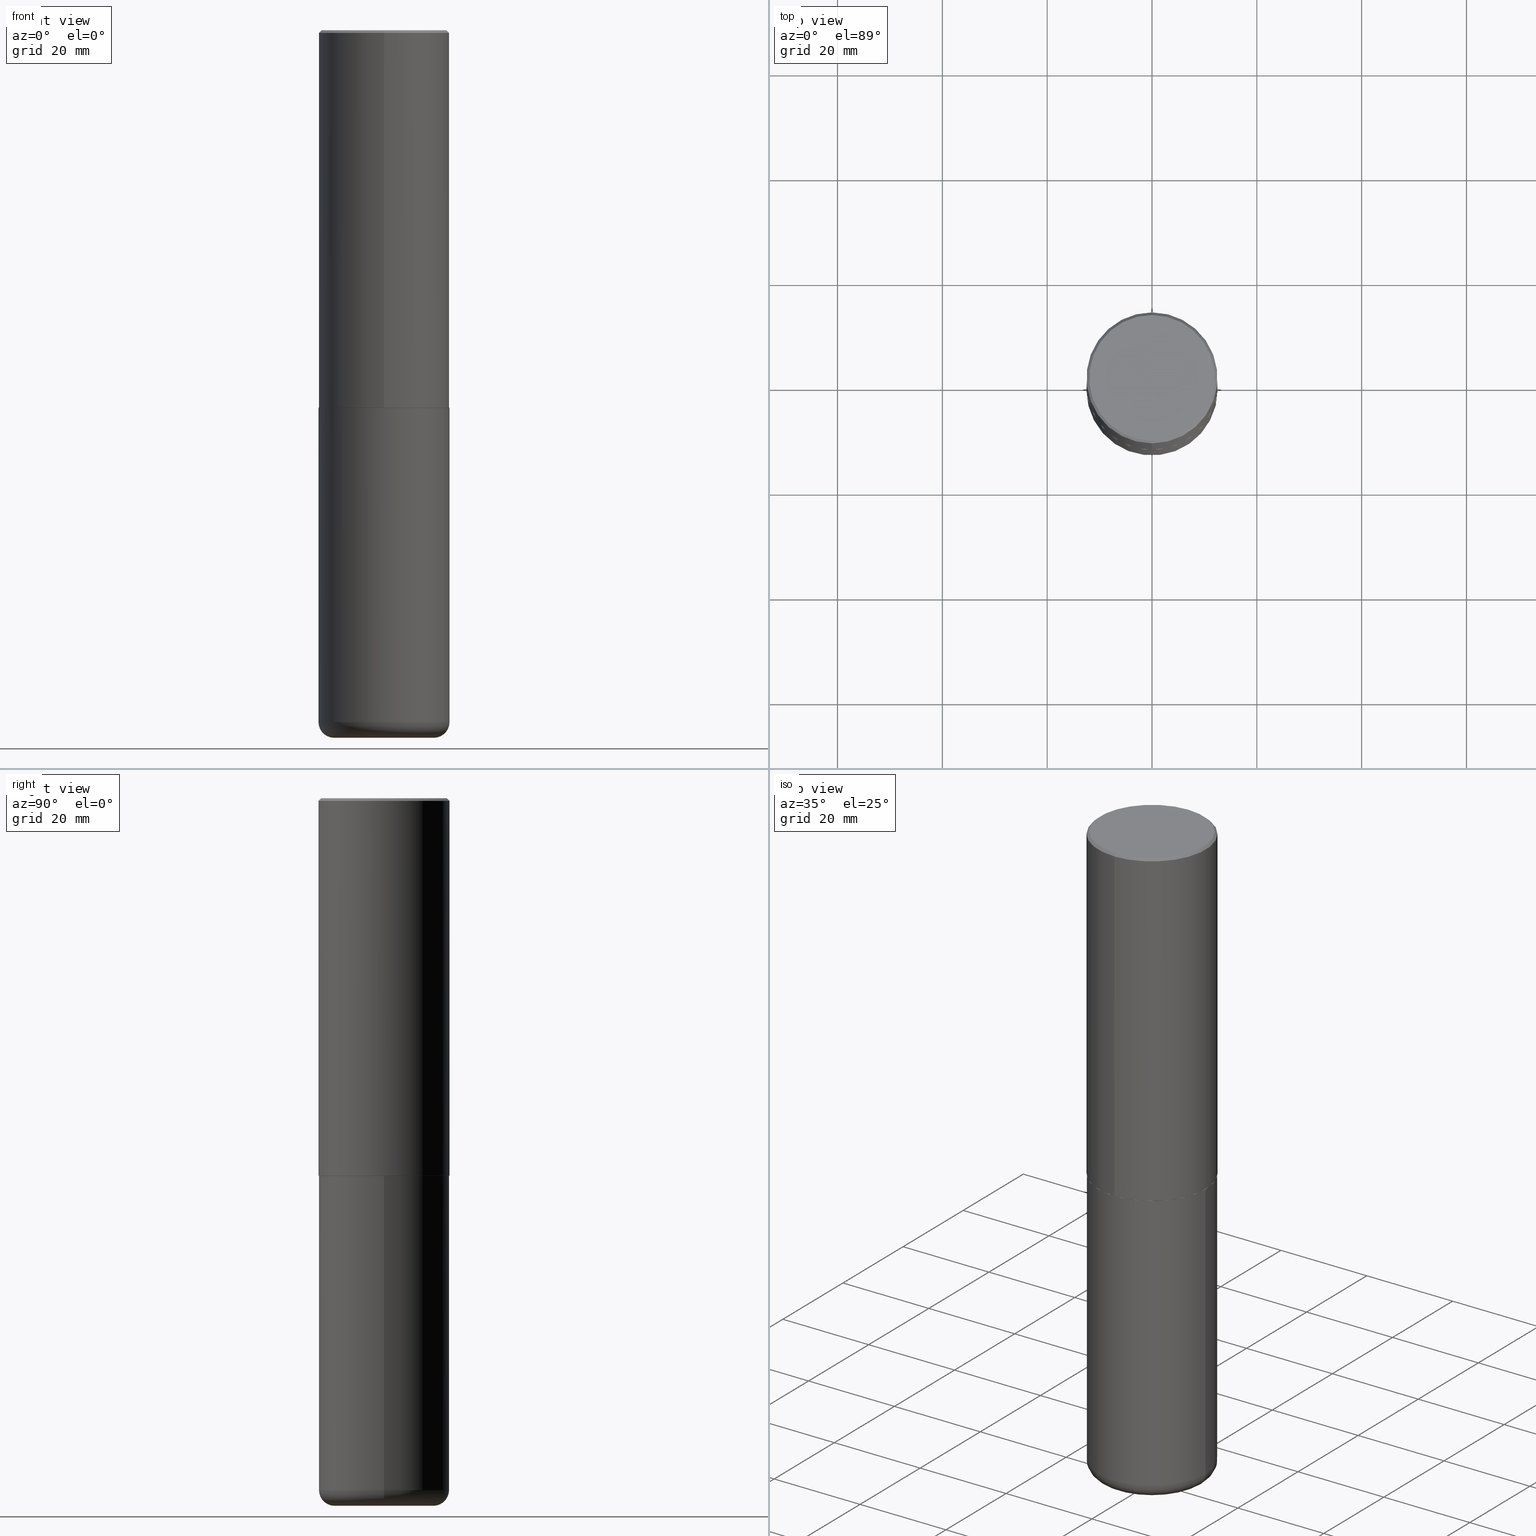
[diagram: canonical four-view strip — front | top / right | iso, engineering-drawing reading convention]
A machine part, canonical four-view strip (front | top / right | iso — engineering-drawing reading convention). The complete STEP part file that produces these views, byte-faithful:
ISO-10303-21;
HEADER;
FILE_DESCRIPTION (( 'STEP AP203' ),
    '1' );
FILE_NAME ('74565.STEP',
    '2024-03-06T15:30:20',
    ( '' ),
    ( '' ),
    'SwSTEP 2.0',
    'SolidWorks 2023',
    '' );
FILE_SCHEMA (( 'CONFIG_CONTROL_DESIGN' ));
ENDSEC;

DATA;
#1 = EDGE_LOOP ( 'NONE', ( #282, #176 ) ) ;
#2 = CIRCLE ( 'NONE', #196, 0.4921499999999999764 ) ;
#3 = DIRECTION ( 'NONE',  ( -2.445229172240879899E-29, 3.491824508290438219E-15, 1.000000000000000000 ) ) ;
#4 = DIRECTION ( 'NONE',  ( -6.982962677686264344E-15, -1.000000000000000000, 3.491824508290437824E-15 ) ) ;
#5 = FACE_OUTER_BOUND ( 'NONE', #268, .T. ) ;
#6 = DIRECTION ( 'NONE',  ( -2.445468806185136877E-29, 3.491481338843145188E-15, 1.000000000000000000 ) ) ;
#7 =( CONVERSION_BASED_UNIT ( 'INCH', #103 ) LENGTH_UNIT ( ) NAMED_UNIT ( #404 ) );
#8 = EDGE_CURVE ( 'NONE', #280, #198, #336, .T. ) ;
#9 = ORIENTED_EDGE ( 'NONE', *, *, #384, .F. ) ;
#10 = ADVANCED_FACE ( 'NONE', ( #367 ), #179, .T. ) ;
#11 = ORIENTED_EDGE ( 'NONE', *, *, #8, .T. ) ;
#12 = PLANE ( 'NONE',  #371 ) ;
#13 = CONICAL_SURFACE ( 'NONE', #46, 0.4921499999999999764, 0.7853981633974479459 ) ;
#14 = DIRECTION ( 'NONE',  ( -2.445468806185136597E-29, 3.491481338843145583E-15, 1.000000000000000000 ) ) ;
#15 = APPROVAL_DATE_TIME ( #319, #82 ) ;
#16 = PERSON_AND_ORGANIZATION ( #261, #352 ) ;
#17 = VECTOR ( 'NONE', #135, 39.37007874015748143 ) ;
#18 = CARTESIAN_POINT ( 'NONE',  ( 0.000000000000000000, 0.000000000000000000, 0.000000000000000000 ) ) ;
#19 = EDGE_CURVE ( 'NONE', #198, #280, #193, .T. ) ;
#20 = ADVANCED_FACE ( 'NONE', ( #332 ), #13, .T. ) ;
#21 = DIRECTION ( 'NONE',  ( -6.982962677686266711E-15, -1.000000000000000000, 3.491481338843145583E-15 ) ) ;
#22 = DIRECTION ( 'NONE',  ( 6.982962677686265922E-15, 1.000000000000000000, -3.491824508290438613E-15 ) ) ;
#23 = CIRCLE ( 'NONE', #119, 0.4921500000000003094 ) ;
#24 = CC_DESIGN_APPROVAL ( #159, ( #38 ) ) ;
#25 = DIRECTION ( 'NONE',  ( 1.000000000000000000, -6.982962677686270655E-15, 0.000000000000000000 ) ) ;
#26 = ADVANCED_FACE ( 'NONE', ( #241 ), #245, .T. ) ;
#27 = DIRECTION ( 'NONE',  ( -6.982962677686265922E-15, -1.000000000000000000, 3.491824508290438219E-15 ) ) ;
#28 = CARTESIAN_POINT ( 'NONE',  ( 3.496936074043369184E-15, 0.4921499999999904285, -2.833700000000002106 ) ) ;
#29 = EDGE_CURVE ( 'NONE', #88, #411, #213, .T. ) ;
#30 = AXIS2_PLACEMENT_3D ( 'NONE', #216, #370, #148 ) ;
#31 = AXIS2_PLACEMENT_3D ( 'NONE', #243, #146, #194 ) ;
#32 = ORIENTED_EDGE ( 'NONE', *, *, #85, .F. ) ;
#33 = CARTESIAN_POINT ( 'NONE',  ( -0.4921499999999999764, 3.496936074043332897E-15, -2.420853904668951509E-29 ) ) ;
#34 = CARTESIAN_POINT ( 'NONE',  ( -0.4921499999999999764, -1.052415468648297289E-14, -2.834700000000000220 ) ) ;
#35 = DIRECTION ( 'NONE',  ( -2.445229172240879899E-29, 3.491824508290438219E-15, 1.000000000000000000 ) ) ;
#36 = ORIENTED_EDGE ( 'NONE', *, *, #298, .F. ) ;
#37 = VECTOR ( 'NONE', #122, 39.37007874015748143 ) ;
#38 = PRODUCT_DEFINITION_FORMATION_WITH_SPECIFIED_SOURCE ( 'ANY', '', #231, .NOT_KNOWN. ) ;
#39 = CARTESIAN_POINT ( 'NONE',  ( 4.890458344481786073E-31, -6.983649016580912824E-17, -0.02000000000000010797 ) ) ;
#40 = DIRECTION ( 'NONE',  ( -2.445229172240879899E-29, 3.491824508290438219E-15, 1.000000000000000000 ) ) ;
#41 = ADVANCED_FACE ( 'NONE', ( #5 ), #136, .T. ) ;
#42 = DIRECTION ( 'NONE',  ( -6.982962677686264344E-15, -1.000000000000000000, 3.491824508290437824E-15 ) ) ;
#43 = ORIENTED_EDGE ( 'NONE', *, *, #218, .T. ) ;
#44 = CARTESIAN_POINT ( 'NONE',  ( 0.000000000000000000, 0.000000000000000000, 0.000000000000000000 ) ) ;
#45 = VERTEX_POINT ( 'NONE', #69 ) ;
#46 = AXIS2_PLACEMENT_3D ( 'NONE', #39, #254, #166 ) ;
#47 = SHAPE_DEFINITION_REPRESENTATION ( #237, #349 ) ;
#48 = DIRECTION ( 'NONE',  ( -6.982962677686265922E-15, -1.000000000000000000, 3.491824508290438613E-15 ) ) ;
#49 = UNCERTAINTY_MEASURE_WITH_UNIT (LENGTH_MEASURE( 1.000000000000000082E-05 ), #7, 'distance_accuracy_value', 'NONE');
#50 = CARTESIAN_POINT ( 'NONE',  ( -3.376394089603258262E-15, -0.4921500000000000319, -0.01999999999999838712 ) ) ;
#51 = CALENDAR_DATE ( 2024, 6, 3 ) ;
#52 = AXIS2_PLACEMENT_3D ( 'NONE', #251, #94, #55 ) ;
#53 = DIRECTION ( 'NONE',  ( -2.445468806185136597E-29, 3.491481338843145583E-15, 1.000000000000000000 ) ) ;
#54 = CARTESIAN_POINT ( 'NONE',  ( 3.436665081823296171E-15, 0.4921499999999999209, -0.02000000000000182535 ) ) ;
#55 = DIRECTION ( 'NONE',  ( -6.982962677686265922E-15, -1.000000000000000000, 3.330506545156063891E-15 ) ) ;
#56 = CC_DESIGN_PERSON_AND_ORGANIZATION_ASSIGNMENT ( #144, #368, ( #312 ) ) ;
#57 = AXIS2_PLACEMENT_3D ( 'NONE', #200, #365, #74 ) ;
#58 = APPLICATION_PROTOCOL_DEFINITION ( 'international standard', 'config_control_design', 1994, #168 ) ;
#59 = ADVANCED_FACE ( 'NONE', ( #197 ), #225, .T. ) ;
#60 = ORIENTED_EDGE ( 'NONE', *, *, #240, .T. ) ;
#61 = CIRCLE ( 'NONE', #98, 0.4921499999999999764 ) ;
#62 = AXIS2_PLACEMENT_3D ( 'NONE', #239, #360, #64 ) ;
#63 = ORIENTED_EDGE ( 'NONE', *, *, #100, .T. ) ;
#64 = DIRECTION ( 'NONE',  ( 1.000000000000000000, -6.982962677686265133E-15, 0.000000000000000000 ) ) ;
#65 = CARTESIAN_POINT ( 'NONE',  ( 4.890458344481786073E-31, -6.983649016580912824E-17, -0.02000000000000010797 ) ) ;
#66 = CIRCLE ( 'NONE', #318, 0.1181000000000000383 ) ;
#67 = CC_DESIGN_APPROVAL ( #304, ( #335 ) ) ;
#68 = CARTESIAN_POINT ( 'NONE',  ( 0.4921499999999999764, -2.158154445165724138E-14, -5.196900000000000297 ) ) ;
#69 = CARTESIAN_POINT ( 'NONE',  ( -3.376394089603258262E-15, -0.4921500000000000319, -0.01999999999999838712 ) ) ;
#70 = EDGE_LOOP ( 'NONE', ( #295, #390, #188, #36 ) ) ;
#71 = PLANE ( 'NONE',  #357 ) ;
#72 = DIRECTION ( 'NONE',  ( 1.000000000000000000, 0.000000000000000000, 0.000000000000000000 ) ) ;
#73 = EDGE_CURVE ( 'NONE', #358, #264, #290, .T. ) ;
#74 = DIRECTION ( 'NONE',  ( 1.000000000000000000, -6.982962677686265922E-15, 0.000000000000000000 ) ) ;
#75 = ORIENTED_EDGE ( 'NONE', *, *, #186, .F. ) ;
#76 = COORDINATED_UNIVERSAL_TIME_OFFSET ( 5, 0, .BEHIND. ) ;
#77 = DIRECTION ( 'NONE',  ( -2.445229172240879899E-29, 3.491824508290438219E-15, 1.000000000000000000 ) ) ;
#78 = ORIENTED_EDGE ( 'NONE', *, *, #19, .T. ) ;
#79 = DIRECTION ( 'NONE',  ( 1.000000000000000000, -6.982962677686266711E-15, 4.883557194083112340E-29 ) ) ;
#80 = CIRCLE ( 'NONE', #255, 0.4921499999999999764 ) ;
#81 = DIRECTION ( 'NONE',  ( 1.000000000000000000, -6.982962677686265922E-15, 4.876176775795935793E-29 ) ) ;
#82 = APPROVAL ( #209, 'UNSPECIFIED' ) ;
#83 = APPROVAL_ROLE ( '' ) ;
#84 = CARTESIAN_POINT ( 'NONE',  ( 0.4921499999999999764, -1.333396723304196175E-14, -2.834700000000000220 ) ) ;
#85 = EDGE_CURVE ( 'NONE', #93, #177, #2, .T. ) ;
#86 = CALENDAR_DATE ( 2024, 6, 3 ) ;
#87 = CIRCLE ( 'NONE', #328, 0.4911499999999999755 ) ;
#88 = VERTEX_POINT ( 'NONE', #300 ) ;
#89 = ORIENTED_EDGE ( 'NONE', *, *, #356, .T. ) ;
#90 = CYLINDRICAL_SURFACE ( 'NONE', #30, 0.4921500000000000874 ) ;
#91 = ORIENTED_EDGE ( 'NONE', *, *, #278, .T. ) ;
#92 = CYLINDRICAL_SURFACE ( 'NONE', #143, 0.4921500000000000874 ) ;
#93 = VERTEX_POINT ( 'NONE', #129 ) ;
#94 = DIRECTION ( 'NONE',  ( -2.445229172240879899E-29, 3.491824508290438219E-15, 1.000000000000000000 ) ) ;
#95 = EDGE_CURVE ( 'NONE', #93, #358, #259, .T. ) ;
#96 = ADVANCED_FACE ( 'NONE', ( #271 ), #71, .F. ) ;
#97 = MANIFOLD_SOLID_BREP ( 'Body-Move/Copy2[1]', #407 ) ;
#98 = AXIS2_PLACEMENT_3D ( 'NONE', #102, #228, #236 ) ;
#99 = DIRECTION ( 'NONE',  ( -2.445229172240879899E-29, 3.491824508290438613E-15, 1.000000000000000000 ) ) ;
#100 = EDGE_CURVE ( 'NONE', #272, #134, #250, .T. ) ;
#101 = ORIENTED_EDGE ( 'NONE', *, *, #373, .T. ) ;
#102 = CARTESIAN_POINT ( 'NONE',  ( 1.270885683886353718E-28, -1.814487936983394718E-14, -5.196900000000000297 ) ) ;
#103 = LENGTH_MEASURE_WITH_UNIT ( LENGTH_MEASURE( 0.02539999999999999897 ), #361 );
#104 = AXIS2_PLACEMENT_3D ( 'NONE', #170, #308, #138 ) ;
#105 = CARTESIAN_POINT ( 'NONE',  ( 6.931491134551223323E-29, -9.898274933650907147E-15, -2.834700000000000220 ) ) ;
#106 = DIRECTION ( 'NONE',  ( -2.445468806185136597E-29, 3.491481338843145583E-15, 1.000000000000000000 ) ) ;
#107 = EDGE_CURVE ( 'NONE', #177, #93, #61, .T. ) ;
#108 = ORIENTED_EDGE ( 'NONE', *, *, #19, .F. ) ;
#109 = CARTESIAN_POINT ( 'NONE',  ( 6.932170424893007423E-29, -9.897302151218665974E-15, -2.834700000000000220 ) ) ;
#110 = EDGE_LOOP ( 'NONE', ( #192, #340, #117, #248 ) ) ;
#111 = COORDINATED_UNIVERSAL_TIME_OFFSET ( 5, 0, .BEHIND. ) ;
#112 = EDGE_LOOP ( 'NONE', ( #9, #11, #289, #32 ) ) ;
#113 = DATE_AND_TIME ( #288, #125 ) ;
#114 = PERSON_AND_ORGANIZATION_ROLE ( 'creator' ) ;
#115 = EDGE_CURVE ( 'NONE', #45, #156, #323, .T. ) ;
#116 = APPROVAL_DATE_TIME ( #343, #159 ) ;
#117 = ORIENTED_EDGE ( 'NONE', *, *, #151, .T. ) ;
#118 = APPROVAL_ROLE ( '' ) ;
#119 = AXIS2_PLACEMENT_3D ( 'NONE', #252, #77, #296 ) ;
#120 = APPROVAL_PERSON_ORGANIZATION ( #244, #82, #118 ) ;
#121 = EDGE_LOOP ( 'NONE', ( #224, #63, #43, #75 ) ) ;
#122 = DIRECTION ( 'NONE',  ( -2.445468806185136877E-29, 3.491481338843145188E-15, 1.000000000000000000 ) ) ;
#123 = ORIENTED_EDGE ( 'NONE', *, *, #85, .T. ) ;
#124 = AXIS2_PLACEMENT_3D ( 'NONE', #281, #305, #142 ) ;
#125 = LOCAL_TIME ( 10, 30, 20.00000000000000000, #402 ) ;
#126 = CARTESIAN_POINT ( 'NONE',  ( 6.931491134551223323E-29, -9.898274933650907147E-15, -2.834700000000000220 ) ) ;
#127 = EDGE_LOOP ( 'NONE', ( #78, #222, #171, #398 ) ) ;
#128 = ORIENTED_EDGE ( 'NONE', *, *, #218, .F. ) ;
#129 = CARTESIAN_POINT ( 'NONE',  ( -0.4921499999999999764, -1.464794329579061349E-14, -5.196900000000000297 ) ) ;
#130 = DIRECTION ( 'NONE',  ( 5.024295867789434219E-15, 0.7071067811867430830, 0.7071067811863519514 ) ) ;
#131 = DIRECTION ( 'NONE',  ( -2.445229172240879339E-29, 3.491824508290438613E-15, 1.000000000000000000 ) ) ;
#132 = ADVANCED_FACE ( 'NONE', ( #310 ), #12, .F. ) ;
#133 = AXIS2_PLACEMENT_3D ( 'NONE', #274, #363, #266 ) ;
#134 = VERTEX_POINT ( 'NONE', #181 ) ;
#135 = DIRECTION ( 'NONE',  ( -2.445229172240879899E-29, 3.491824508290438613E-15, 1.000000000000000000 ) ) ;
#136 = PLANE ( 'NONE',  #133 ) ;
#137 =( NAMED_UNIT ( * ) PLANE_ANGLE_UNIT ( ) SI_UNIT ( $, .RADIAN. ) );
#138 = DIRECTION ( 'NONE',  ( -6.982962677686265922E-15, -1.000000000000000000, 3.337287582609300506E-15 ) ) ;
#139 = VERTEX_POINT ( 'NONE', #210 ) ;
#140 = ADVANCED_FACE ( 'NONE', ( #372 ), #316, .T. ) ;
#141 = DIRECTION ( 'NONE',  ( -2.445229172240879899E-29, 3.491824508290438219E-15, 1.000000000000000000 ) ) ;
#142 = DIRECTION ( 'NONE',  ( 1.000000000000000000, -6.982962677686266711E-15, 4.883557194083112340E-29 ) ) ;
#143 = AXIS2_PLACEMENT_3D ( 'NONE', #44, #232, #27 ) ;
#144 = PERSON_AND_ORGANIZATION ( #261, #352 ) ;
#145 = ORIENTED_EDGE ( 'NONE', *, *, #317, .T. ) ;
#146 = DIRECTION ( 'NONE',  ( -2.445468806185136597E-29, 3.491481338843145583E-15, 1.000000000000000000 ) ) ;
#147 = VECTOR ( 'NONE', #408, 39.37007874015748143 ) ;
#148 = DIRECTION ( 'NONE',  ( -6.982962677686265922E-15, -1.000000000000000000, 3.491824508290438219E-15 ) ) ;
#149 = DIRECTION ( 'NONE',  ( -2.445468806185136597E-29, 3.491481338843145583E-15, 1.000000000000000000 ) ) ;
#150 = CARTESIAN_POINT ( 'NONE',  ( 4.890458344481786073E-31, -6.983649016580912824E-17, -0.02000000000000010797 ) ) ;
#151 = EDGE_CURVE ( 'NONE', #88, #156, #406, .T. ) ;
#152 = DIRECTION ( 'NONE',  ( -6.982962677686265922E-15, -1.000000000000000000, 3.337287582609300506E-15 ) ) ;
#153 = CARTESIAN_POINT ( 'NONE',  ( 3.493383360364602601E-15, 0.4911499999999900390, -2.834700000000001996 ) ) ;
#154 = CONICAL_SURFACE ( 'NONE', #165, 0.4911499999999999755, 0.7853981633977213939 ) ;
#155 = EDGE_LOOP ( 'NONE', ( #201, #330, #161, #128 ) ) ;
#156 = VERTEX_POINT ( 'NONE', #54 ) ;
#157 = CARTESIAN_POINT ( 'NONE',  ( 0.3740499999999999381, -2.116920050553986882E-14, -5.315000000000000391 ) ) ;
#158 = CARTESIAN_POINT ( 'NONE',  ( 3.297005828269570364E-15, 0.4721500000000000696, -1.731819921419018991E-15 ) ) ;
#159 = APPROVAL ( #315, 'UNSPECIFIED' ) ;
#160 = APPROVAL_ROLE ( '' ) ;
#161 = ORIENTED_EDGE ( 'NONE', *, *, #317, .F. ) ;
#162 = ADVANCED_FACE ( 'NONE', ( #321 ), #351, .T. ) ;
#163 = DIRECTION ( 'NONE',  ( -1.000000000000000000, 6.982962677686265922E-15, -4.876176775795935793E-29 ) ) ;
#164 = DIRECTION ( 'NONE',  ( 1.000000000000000000, -6.982962677686265922E-15, 4.876176775795935793E-29 ) ) ;
#165 = AXIS2_PLACEMENT_3D ( 'NONE', #284, #215, #152 ) ;
#166 = DIRECTION ( 'NONE',  ( 6.982962677686265922E-15, 1.000000000000000000, -3.495297233588267464E-15 ) ) ;
#167 = ORIENTED_EDGE ( 'NONE', *, *, #381, .F. ) ;
#168 = APPLICATION_CONTEXT ( 'configuration controlled 3d designs of mechanical parts and assemblies' ) ;
#169 = FACE_OUTER_BOUND ( 'NONE', #238, .T. ) ;
#170 = CARTESIAN_POINT ( 'NONE',  ( 6.931491134551223323E-29, -9.898274933650907147E-15, -2.834700000000000220 ) ) ;
#171 = ORIENTED_EDGE ( 'NONE', *, *, #107, .F. ) ;
#172 = FACE_OUTER_BOUND ( 'NONE', #121, .T. ) ;
#173 = ORIENTED_EDGE ( 'NONE', *, *, #400, .F. ) ;
#174 = CARTESIAN_POINT ( 'NONE',  ( 0.000000000000000000, 0.000000000000000000, 0.000000000000000000 ) ) ;
#175 = AXIS2_PLACEMENT_3D ( 'NONE', #331, #309, #164 ) ;
#176 = ORIENTED_EDGE ( 'NONE', *, *, #355, .T. ) ;
#177 = VERTEX_POINT ( 'NONE', #68 ) ;
#178 = LINE ( 'NONE', #50, #147 ) ;
#179 = TOROIDAL_SURFACE ( 'NONE', #208, 0.3740499999999999381, 0.1181000000000000383 ) ;
#180 = ADVANCED_FACE ( 'NONE', ( #172 ), #154, .T. ) ;
#181 = CARTESIAN_POINT ( 'NONE',  ( -3.429682119145539948E-15, -0.4911500000000098565, -2.834699999999998443 ) ) ;
#182 = CARTESIAN_POINT ( 'NONE',  ( 1.270885683886353718E-28, -1.814487936983394718E-14, -5.196900000000000297 ) ) ;
#183 = VECTOR ( 'NONE', #6, 39.37007874015748143 ) ;
#184 = APPROVAL_PERSON_ORGANIZATION ( #207, #159, #83 ) ;
#185 = DIRECTION ( 'NONE',  ( 1.000000000000000000, -6.982962677686265922E-15, 0.000000000000000000 ) ) ;
#186 = EDGE_CURVE ( 'NONE', #322, #139, #385, .T. ) ;
#187 = SECURITY_CLASSIFICATION_LEVEL ( 'unclassified' ) ;
#188 = ORIENTED_EDGE ( 'NONE', *, *, #278, .F. ) ;
#189 = FACE_OUTER_BOUND ( 'NONE', #1, .T. ) ;
#190 = EDGE_CURVE ( 'NONE', #198, #177, #346, .T. ) ;
#191 = PERSON_AND_ORGANIZATION ( #261, #352 ) ;
#192 = ORIENTED_EDGE ( 'NONE', *, *, #240, .F. ) ;
#193 = CIRCLE ( 'NONE', #31, 0.3740499999999999381 ) ;
#194 = DIRECTION ( 'NONE',  ( 1.000000000000000000, -6.982962677686265133E-15, 0.000000000000000000 ) ) ;
#195 = CARTESIAN_POINT ( 'NONE',  ( 4.066659649933121937E-45, -5.807251931114062973E-31, -1.663099596593768543E-16 ) ) ;
#196 = AXIS2_PLACEMENT_3D ( 'NONE', #182, #106, #327 ) ;
#197 = FACE_OUTER_BOUND ( 'NONE', #155, .T. ) ;
#198 = VERTEX_POINT ( 'NONE', #157 ) ;
#199 = PRODUCT_RELATED_PRODUCT_CATEGORY ( 'detail', '', ( #231 ) ) ;
#200 = CARTESIAN_POINT ( 'NONE',  ( 6.932170424893007423E-29, -9.897302151218665974E-15, -2.834700000000000220 ) ) ;
#201 = ORIENTED_EDGE ( 'NONE', *, *, #400, .T. ) ;
#202 = DIRECTION ( 'NONE',  ( -6.982962677686265922E-15, -1.000000000000000000, 3.495297233588267464E-15 ) ) ;
#203 = LINE ( 'NONE', #334, #17 ) ;
#204 = VECTOR ( 'NONE', #130, 39.37007874015748143 ) ;
#205 = ADVANCED_FACE ( 'NONE', ( #294 ), #90, .T. ) ;
#206 =( GEOMETRIC_REPRESENTATION_CONTEXT ( 3 ) GLOBAL_UNCERTAINTY_ASSIGNED_CONTEXT ( ( #49 ) ) GLOBAL_UNIT_ASSIGNED_CONTEXT ( ( #7, #137, #386 ) ) REPRESENTATION_CONTEXT ( 'NONE', 'WORKASPACE' ) );
#207 = PERSON_AND_ORGANIZATION ( #261, #352 ) ;
#208 = AXIS2_PLACEMENT_3D ( 'NONE', #313, #14, #79 ) ;
#209 = APPROVAL_STATUS ( 'not_yet_approved' ) ;
#210 = CARTESIAN_POINT ( 'NONE',  ( -3.436665081823228329E-15, -0.4921500000000101904, -2.833699999999998997 ) ) ;
#211 = CC_DESIGN_PERSON_AND_ORGANIZATION_ASSIGNMENT ( #16, #247, ( #38 ) ) ;
#212 = CARTESIAN_POINT ( 'NONE',  ( 3.436665081823296171E-15, 0.4921499999999999209, -0.02000000000000182535 ) ) ;
#213 = CIRCLE ( 'NONE', #299, 0.4721500000000000696 ) ;
#214 = DATE_TIME_ROLE ( 'creation_date' ) ;
#215 = DIRECTION ( 'NONE',  ( -2.445229172240879899E-29, 3.491824508290438219E-15, 1.000000000000000000 ) ) ;
#216 = CARTESIAN_POINT ( 'NONE',  ( 0.000000000000000000, 0.000000000000000000, 0.000000000000000000 ) ) ;
#217 = AXIS2_PLACEMENT_3D ( 'NONE', #293, #53, #185 ) ;
#218 = EDGE_CURVE ( 'NONE', #134, #139, #286, .T. ) ;
#219 = ORIENTED_EDGE ( 'NONE', *, *, #100, .F. ) ;
#220 = AXIS2_PLACEMENT_3D ( 'NONE', #174, #364, #72 ) ;
#221 = PERSON_AND_ORGANIZATION ( #261, #352 ) ;
#222 = ORIENTED_EDGE ( 'NONE', *, *, #384, .T. ) ;
#223 = CARTESIAN_POINT ( 'NONE',  ( 3.489830646685800520E-15, 0.4911499999999900390, -2.834700000000001996 ) ) ;
#224 = ORIENTED_EDGE ( 'NONE', *, *, #292, .F. ) ;
#225 = CONICAL_SURFACE ( 'NONE', #104, 0.4911499999999999755, 0.7853981633977213939 ) ;
#226 = LOCAL_TIME ( 10, 30, 20.00000000000000000, #76 ) ;
#227 = EDGE_LOOP ( 'NONE', ( #383, #306, #89, #167 ) ) ;
#228 = DIRECTION ( 'NONE',  ( -2.445468806185136597E-29, 3.491481338843145583E-15, 1.000000000000000000 ) ) ;
#229 = CYLINDRICAL_SURFACE ( 'NONE', #175, 0.4921499999999999764 ) ;
#230 = CC_DESIGN_PERSON_AND_ORGANIZATION_ASSIGNMENT ( #221, #353, ( #231 ) ) ;
#231 = PRODUCT ( '74565', '74565', '', ( #311 ) ) ;
#232 = DIRECTION ( 'NONE',  ( -2.445229172240879899E-29, 3.491824508290438219E-15, 1.000000000000000000 ) ) ;
#233 = VECTOR ( 'NONE', #345, 39.37007874015748143 ) ;
#234 = MANIFOLD_SOLID_BREP ( 'Body-Move/Copy2[2]', #354 ) ;
#235 = ORIENTED_EDGE ( 'NONE', *, *, #95, .F. ) ;
#236 = DIRECTION ( 'NONE',  ( 1.000000000000000000, -6.982962677686265922E-15, 0.000000000000000000 ) ) ;
#237 = PRODUCT_DEFINITION_SHAPE ( 'NONE', 'NONE',  #335 ) ;
#238 = EDGE_LOOP ( 'NONE', ( #145, #101, #275, #396 ) ) ;
#239 = CARTESIAN_POINT ( 'NONE',  ( 1.299766670487400218E-28, -1.855722331595131973E-14, -5.315000000000000391 ) ) ;
#240 = EDGE_CURVE ( 'NONE', #411, #45, #178, .T. ) ;
#241 = FACE_OUTER_BOUND ( 'NONE', #112, .T. ) ;
#242 = DIRECTION ( 'NONE',  ( -4.937700262165896205E-15, -0.7071067811867381980, 0.7071067811863568364 ) ) ;
#243 = CARTESIAN_POINT ( 'NONE',  ( 1.299766670487400218E-28, -1.855722331595131973E-14, -5.315000000000000391 ) ) ;
#244 = PERSON_AND_ORGANIZATION ( #261, #352 ) ;
#245 = TOROIDAL_SURFACE ( 'NONE', #124, 0.3740499999999999381, 0.1181000000000000383 ) ;
#246 = DESIGN_CONTEXT ( 'detailed design', #168, 'design' ) ;
#247 = PERSON_AND_ORGANIZATION_ROLE ( 'design_supplier' ) ;
#248 = ORIENTED_EDGE ( 'NONE', *, *, #381, .T. ) ;
#249 = LINE ( 'NONE', #223, #204 ) ;
#250 = CIRCLE ( 'NONE', #302, 0.4911499999999999755 ) ;
#251 = CARTESIAN_POINT ( 'NONE',  ( 6.929045905378983914E-29, -9.894783109142616722E-15, -2.833700000000000330 ) ) ;
#252 = CARTESIAN_POINT ( 'NONE',  ( 6.929045905378983914E-29, -9.894783109142616722E-15, -2.833700000000000330 ) ) ;
#253 = CC_DESIGN_DATE_AND_TIME_ASSIGNMENT ( #113, #214, ( #335 ) ) ;
#254 = DIRECTION ( 'NONE',  ( 2.445229172240879899E-29, -3.491824508290438219E-15, -1.000000000000000000 ) ) ;
#255 = AXIS2_PLACEMENT_3D ( 'NONE', #65, #40, #417 ) ;
#256 = APPROVAL_PERSON_ORGANIZATION ( #191, #304, #160 ) ;
#257 = ORIENTED_EDGE ( 'NONE', *, *, #151, .F. ) ;
#258 = CC_DESIGN_PERSON_AND_ORGANIZATION_ASSIGNMENT ( #399, #114, ( #38 ) ) ;
#259 = LINE ( 'NONE', #33, #183 ) ;
#260 = DIRECTION ( 'NONE',  ( 6.982962677686265922E-15, 1.000000000000000000, -3.495297233588267464E-15 ) ) ;
#261 = PERSON ( 'UNSPECIFIED', 'UNSPECIFIED', 'UNSPECIFIED', ('UNSPECIFIED'), ('UNSPECIFIED'), ('UNSPECIFIED') ) ;
#262 = CIRCLE ( 'NONE', #273, 0.4721500000000000696 ) ;
#263 = DIRECTION ( 'NONE',  ( 7.105427357601001859E-15, 1.000000000000000000, -3.491481338843145583E-15 ) ) ;
#264 = VERTEX_POINT ( 'NONE', #84 ) ;
#265 = CARTESIAN_POINT ( 'NONE',  ( -0.3740499999999999381, -1.548709426672329248E-14, -5.196900000000000297 ) ) ;
#266 = DIRECTION ( 'NONE',  ( -1.000000000000000000, 6.982962677686265922E-15, -4.876176775795935793E-29 ) ) ;
#267 = ADVANCED_FACE ( 'NONE', ( #189 ), #350, .F. ) ;
#268 = EDGE_LOOP ( 'NONE', ( #108, #341 ) ) ;
#269 = CARTESIAN_POINT ( 'NONE',  ( 4.890458344481786073E-31, -6.983649016580912824E-17, -0.02000000000000010797 ) ) ;
#270 = FACE_OUTER_BOUND ( 'NONE', #369, .T. ) ;
#271 = FACE_OUTER_BOUND ( 'NONE', #387, .T. ) ;
#272 = VERTEX_POINT ( 'NONE', #153 ) ;
#273 = AXIS2_PLACEMENT_3D ( 'NONE', #195, #389, #4 ) ;
#274 = CARTESIAN_POINT ( 'NONE',  ( 1.299766670487400218E-28, -1.855722331595131973E-14, -5.315000000000000391 ) ) ;
#275 = ORIENTED_EDGE ( 'NONE', *, *, #115, .F. ) ;
#276 = CARTESIAN_POINT ( 'NONE',  ( 6.931491134551223323E-29, -9.898274933650907147E-15, -2.834700000000000220 ) ) ;
#277 = EDGE_LOOP ( 'NONE', ( #376, #60, #338, #257 ) ) ;
#278 = EDGE_CURVE ( 'NONE', #264, #358, #283, .T. ) ;
#279 = DATE_AND_TIME ( #51, #362 ) ;
#280 = VERTEX_POINT ( 'NONE', #320 ) ;
#281 = CARTESIAN_POINT ( 'NONE',  ( 1.270885683886353718E-28, -1.814487936983394718E-14, -5.196900000000000297 ) ) ;
#282 = ORIENTED_EDGE ( 'NONE', *, *, #29, .T. ) ;
#283 = CIRCLE ( 'NONE', #217, 0.4921499999999999764 ) ;
#284 = CARTESIAN_POINT ( 'NONE',  ( 6.931491134551223323E-29, -9.898274933650907147E-15, -2.834700000000000220 ) ) ;
#285 = PERSON_AND_ORGANIZATION_ROLE ( 'creator' ) ;
#286 = LINE ( 'NONE', #375, #380 ) ;
#287 = CC_DESIGN_DATE_AND_TIME_ASSIGNMENT ( #347, #410, ( #312 ) ) ;
#288 = CALENDAR_DATE ( 2024, 6, 3 ) ;
#289 = ORIENTED_EDGE ( 'NONE', *, *, #190, .T. ) ;
#290 = CIRCLE ( 'NONE', #57, 0.4921499999999999764 ) ;
#291 = CC_DESIGN_APPROVAL ( #82, ( #312 ) ) ;
#292 = EDGE_CURVE ( 'NONE', #272, #322, #249, .T. ) ;
#293 = CARTESIAN_POINT ( 'NONE',  ( 6.932170424893007423E-29, -9.897302151218665974E-15, -2.834700000000000220 ) ) ;
#294 = FACE_OUTER_BOUND ( 'NONE', #227, .T. ) ;
#295 = ORIENTED_EDGE ( 'NONE', *, *, #107, .T. ) ;
#296 = DIRECTION ( 'NONE',  ( -6.982962677686265922E-15, -1.000000000000000000, 3.330506545156063891E-15 ) ) ;
#297 = COORDINATED_UNIVERSAL_TIME_OFFSET ( 5, 0, .BEHIND. ) ;
#298 = EDGE_CURVE ( 'NONE', #177, #264, #329, .T. ) ;
#299 = AXIS2_PLACEMENT_3D ( 'NONE', #401, #35, #42 ) ;
#300 = CARTESIAN_POINT ( 'NONE',  ( 3.366835455046433267E-15, 0.4721500000000000696, -1.814974901248707542E-15 ) ) ;
#301 = ORIENTED_EDGE ( 'NONE', *, *, #73, .F. ) ;
#302 = AXIS2_PLACEMENT_3D ( 'NONE', #105, #3, #388 ) ;
#303 = DIRECTION ( 'NONE',  ( -6.982962677686265922E-15, -1.000000000000000000, 3.337287582609300506E-15 ) ) ;
#304 = APPROVAL ( #326, 'UNSPECIFIED' ) ;
#305 = DIRECTION ( 'NONE',  ( -2.445468806185136597E-29, 3.491481338843145583E-15, 1.000000000000000000 ) ) ;
#306 = ORIENTED_EDGE ( 'NONE', *, *, #186, .T. ) ;
#307 = CARTESIAN_POINT ( 'NONE',  ( -3.307789109625543325E-15, -0.4721500000000000696, 1.482354981929953537E-15 ) ) ;
#308 = DIRECTION ( 'NONE',  ( -2.445229172240879899E-29, 3.491824508290438219E-15, 1.000000000000000000 ) ) ;
#309 = DIRECTION ( 'NONE',  ( -2.445468806185136597E-29, 3.491481338843145583E-15, 1.000000000000000000 ) ) ;
#310 = FACE_OUTER_BOUND ( 'NONE', #415, .T. ) ;
#311 = MECHANICAL_CONTEXT ( 'NONE', #325, 'mechanical' ) ;
#312 = SECURITY_CLASSIFICATION ( '', '', #187 ) ;
#313 = CARTESIAN_POINT ( 'NONE',  ( 1.270885683886353718E-28, -1.814487936983394718E-14, -5.196900000000000297 ) ) ;
#314 = PERSON_AND_ORGANIZATION ( #261, #352 ) ;
#315 = APPROVAL_STATUS ( 'not_yet_approved' ) ;
#316 = CYLINDRICAL_SURFACE ( 'NONE', #342, 0.4921499999999999764 ) ;
#317 = EDGE_CURVE ( 'NONE', #139, #322, #23, .T. ) ;
#318 = AXIS2_PLACEMENT_3D ( 'NONE', #265, #263, #379 ) ;
#319 = DATE_AND_TIME ( #405, #377 ) ;
#320 = CARTESIAN_POINT ( 'NONE',  ( -0.3740499999999999381, -1.527369075431564084E-14, -5.315000000000000391 ) ) ;
#321 = FACE_OUTER_BOUND ( 'NONE', #277, .T. ) ;
#322 = VERTEX_POINT ( 'NONE', #28 ) ;
#323 = CIRCLE ( 'NONE', #418, 0.4921499999999999764 ) ;
#324 = CARTESIAN_POINT ( 'NONE',  ( 0.3740499999999999381, -2.075685655942249311E-14, -5.196900000000000297 ) ) ;
#325 = APPLICATION_CONTEXT ( 'configuration controlled 3d designs of mechanical parts and assemblies' ) ;
#326 = APPROVAL_STATUS ( 'not_yet_approved' ) ;
#327 = DIRECTION ( 'NONE',  ( 1.000000000000000000, -6.982962677686265922E-15, 0.000000000000000000 ) ) ;
#328 = AXIS2_PLACEMENT_3D ( 'NONE', #126, #141, #303 ) ;
#329 = LINE ( 'NONE', #413, #37 ) ;
#330 = ORIENTED_EDGE ( 'NONE', *, *, #292, .T. ) ;
#331 = CARTESIAN_POINT ( 'NONE',  ( 0.000000000000000000, 0.000000000000000000, 0.000000000000000000 ) ) ;
#332 = FACE_OUTER_BOUND ( 'NONE', #110, .T. ) ;
#333 = AXIS2_PLACEMENT_3D ( 'NONE', #324, #21, #25 ) ;
#334 = CARTESIAN_POINT ( 'NONE',  ( -3.436665081823296565E-15, -0.4921500000000000874, 1.718501431755139545E-15 ) ) ;
#335 = PRODUCT_DEFINITION ( 'UNKNOWN', '', #38, #246 ) ;
#336 = CIRCLE ( 'NONE', #62, 0.3740499999999999381 ) ;
#337 = DIRECTION ( 'NONE',  ( -2.445229172240879899E-29, 3.491824508290438219E-15, 1.000000000000000000 ) ) ;
#338 = ORIENTED_EDGE ( 'NONE', *, *, #115, .T. ) ;
#339 = CARTESIAN_POINT ( 'NONE',  ( 3.496936074043333291E-15, 0.4921500000000000874, -1.718501431755139545E-15 ) ) ;
#340 = ORIENTED_EDGE ( 'NONE', *, *, #29, .F. ) ;
#341 = ORIENTED_EDGE ( 'NONE', *, *, #8, .F. ) ;
#342 = AXIS2_PLACEMENT_3D ( 'NONE', #18, #149, #81 ) ;
#343 = DATE_AND_TIME ( #86, #395 ) ;
#344 = APPROVAL_DATE_TIME ( #279, #304 ) ;
#345 = DIRECTION ( 'NONE',  ( 4.937700262164545676E-15, 0.7071067811865447972, -0.7071067811865502373 ) ) ;
#346 = CIRCLE ( 'NONE', #333, 0.1181000000000000383 ) ;
#347 = DATE_AND_TIME ( #374, #226 ) ;
#348 = ADVANCED_FACE ( 'NONE', ( #270 ), #229, .T. ) ;
#349 = ADVANCED_BREP_SHAPE_REPRESENTATION ( '74565', ( #97, #234, #220 ), #206 ) ;
#350 = PLANE ( 'NONE',  #403 ) ;
#351 = CONICAL_SURFACE ( 'NONE', #393, 0.4921499999999999764, 0.7853981633974479459 ) ;
#352 = ORGANIZATION ( 'UNSPECIFIED', 'UNSPECIFIED', '' ) ;
#353 = PERSON_AND_ORGANIZATION_ROLE ( 'design_owner' ) ;
#354 = CLOSED_SHELL ( 'NONE', ( #59, #409, #162, #20, #205, #180, #132, #267 ) ) ;
#355 = EDGE_CURVE ( 'NONE', #411, #88, #262, .T. ) ;
#356 = EDGE_CURVE ( 'NONE', #139, #45, #203, .T. ) ;
#357 = AXIS2_PLACEMENT_3D ( 'NONE', #109, #392, #163 ) ;
#358 = VERTEX_POINT ( 'NONE', #34 ) ;
#359 = LINE ( 'NONE', #339, #414 ) ;
#360 = DIRECTION ( 'NONE',  ( -2.445468806185136597E-29, 3.491481338843145583E-15, 1.000000000000000000 ) ) ;
#361 =( LENGTH_UNIT ( ) NAMED_UNIT ( * ) SI_UNIT ( $, .METRE. ) );
#362 = LOCAL_TIME ( 10, 30, 20.00000000000000000, #297 ) ;
#363 = DIRECTION ( 'NONE',  ( 2.438088387897960049E-29, -3.491481338843145188E-15, -1.000000000000000000 ) ) ;
#364 = DIRECTION ( 'NONE',  ( 0.000000000000000000, 0.000000000000000000, 1.000000000000000000 ) ) ;
#365 = DIRECTION ( 'NONE',  ( -2.445468806185136597E-29, 3.491481338843145583E-15, 1.000000000000000000 ) ) ;
#366 = ORIENTED_EDGE ( 'NONE', *, *, #298, .T. ) ;
#367 = FACE_OUTER_BOUND ( 'NONE', #127, .T. ) ;
#368 = PERSON_AND_ORGANIZATION_ROLE ( 'classification_officer' ) ;
#369 = EDGE_LOOP ( 'NONE', ( #235, #123, #366, #301 ) ) ;
#370 = DIRECTION ( 'NONE',  ( -2.445229172240879899E-29, 3.491824508290438219E-15, 1.000000000000000000 ) ) ;
#371 = AXIS2_PLACEMENT_3D ( 'NONE', #276, #131, #48 ) ;
#372 = FACE_OUTER_BOUND ( 'NONE', #70, .T. ) ;
#373 = EDGE_CURVE ( 'NONE', #322, #156, #359, .T. ) ;
#374 = CALENDAR_DATE ( 2024, 6, 3 ) ;
#375 = CARTESIAN_POINT ( 'NONE',  ( -3.429682119145539948E-15, -0.4911500000000098565, -2.834699999999998443 ) ) ;
#376 = ORIENTED_EDGE ( 'NONE', *, *, #355, .F. ) ;
#377 = LOCAL_TIME ( 10, 30, 20.00000000000000000, #111 ) ;
#378 = DIRECTION ( 'NONE',  ( 2.445229172240879899E-29, -3.491824508290438219E-15, -1.000000000000000000 ) ) ;
#379 = DIRECTION ( 'NONE',  ( -1.000000000000000000, 7.105427357601001859E-15, 0.000000000000000000 ) ) ;
#380 = VECTOR ( 'NONE', #242, 39.37007874015748143 ) ;
#381 = EDGE_CURVE ( 'NONE', #156, #45, #80, .T. ) ;
#382 = CC_DESIGN_SECURITY_CLASSIFICATION ( #312, ( #38 ) ) ;
#383 = ORIENTED_EDGE ( 'NONE', *, *, #373, .F. ) ;
#384 = EDGE_CURVE ( 'NONE', #280, #93, #66, .T. ) ;
#385 = CIRCLE ( 'NONE', #52, 0.4921500000000003094 ) ;
#386 =( NAMED_UNIT ( * ) SI_UNIT ( $, .STERADIAN. ) SOLID_ANGLE_UNIT ( ) );
#387 = EDGE_LOOP ( 'NONE', ( #91, #391 ) ) ;
#388 = DIRECTION ( 'NONE',  ( -6.982962677686265922E-15, -1.000000000000000000, 3.337287582609300506E-15 ) ) ;
#389 = DIRECTION ( 'NONE',  ( -2.445229172240879899E-29, 3.491824508290438219E-15, 1.000000000000000000 ) ) ;
#390 = ORIENTED_EDGE ( 'NONE', *, *, #95, .T. ) ;
#391 = ORIENTED_EDGE ( 'NONE', *, *, #73, .T. ) ;
#392 = DIRECTION ( 'NONE',  ( 2.438088387897960049E-29, -3.491481338843145188E-15, -1.000000000000000000 ) ) ;
#393 = AXIS2_PLACEMENT_3D ( 'NONE', #150, #378, #260 ) ;
#394 = APPLICATION_PROTOCOL_DEFINITION ( 'international standard', 'config_control_design', 1994, #325 ) ;
#395 = LOCAL_TIME ( 10, 30, 20.00000000000000000, #397 ) ;
#396 = ORIENTED_EDGE ( 'NONE', *, *, #356, .F. ) ;
#397 = COORDINATED_UNIVERSAL_TIME_OFFSET ( 5, 0, .BEHIND. ) ;
#398 = ORIENTED_EDGE ( 'NONE', *, *, #190, .F. ) ;
#399 = PERSON_AND_ORGANIZATION ( #261, #352 ) ;
#400 = EDGE_CURVE ( 'NONE', #134, #272, #87, .T. ) ;
#401 = CARTESIAN_POINT ( 'NONE',  ( 4.066659649933121937E-45, -5.807251931114062973E-31, -1.663099596593768543E-16 ) ) ;
#402 = COORDINATED_UNIVERSAL_TIME_OFFSET ( 5, 0, .BEHIND. ) ;
#403 = AXIS2_PLACEMENT_3D ( 'NONE', #158, #412, #22 ) ;
#404 = DIMENSIONAL_EXPONENTS ( 1.000000000000000000, 0.000000000000000000, 0.000000000000000000, 0.000000000000000000, 0.000000000000000000, 0.000000000000000000, 0.000000000000000000 ) ;
#405 = CALENDAR_DATE ( 2024, 6, 3 ) ;
#406 = LINE ( 'NONE', #212, #233 ) ;
#407 = CLOSED_SHELL ( 'NONE', ( #140, #10, #96, #348, #26, #41 ) ) ;
#408 = DIRECTION ( 'NONE',  ( -4.851104656540961908E-15, -0.7071067811865496822, -0.7071067811865453523 ) ) ;
#409 = ADVANCED_FACE ( 'NONE', ( #169 ), #92, .T. ) ;
#410 = DATE_TIME_ROLE ( 'classification_date' ) ;
#411 = VERTEX_POINT ( 'NONE', #307 ) ;
#412 = DIRECTION ( 'NONE',  ( 2.445229172240879339E-29, -3.491824508290438613E-15, -1.000000000000000000 ) ) ;
#413 = CARTESIAN_POINT ( 'NONE',  ( 0.4921499999999999764, -3.436665081823295777E-15, 2.399810400207969603E-29 ) ) ;
#414 = VECTOR ( 'NONE', #99, 39.37007874015748143 ) ;
#415 = EDGE_LOOP ( 'NONE', ( #173, #219 ) ) ;
#416 = CC_DESIGN_PERSON_AND_ORGANIZATION_ASSIGNMENT ( #314, #285, ( #335 ) ) ;
#417 = DIRECTION ( 'NONE',  ( -6.982962677686265922E-15, -1.000000000000000000, 3.495297233588267464E-15 ) ) ;
#418 = AXIS2_PLACEMENT_3D ( 'NONE', #269, #337, #202 ) ;
ENDSEC;
END-ISO-10303-21;
